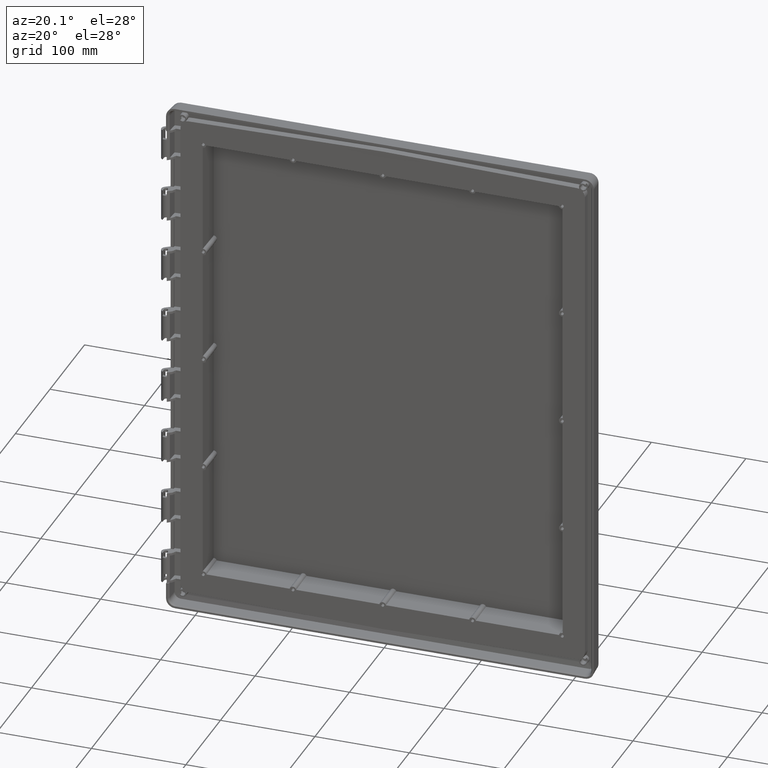
[diagram: clean part render]
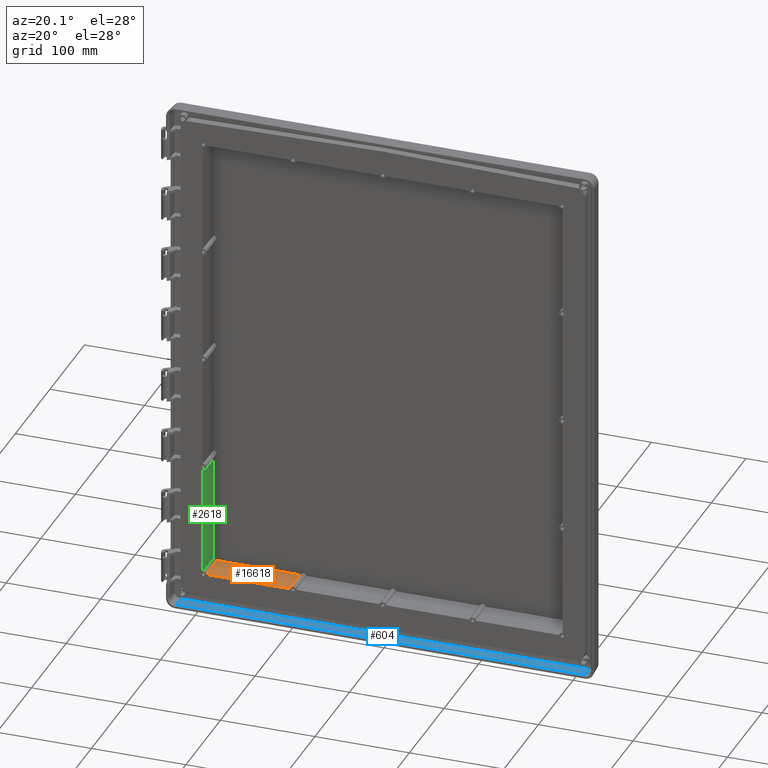
[diagram: same view with three faces highlighted in distinct colors, each labeled with its STEP entity id]
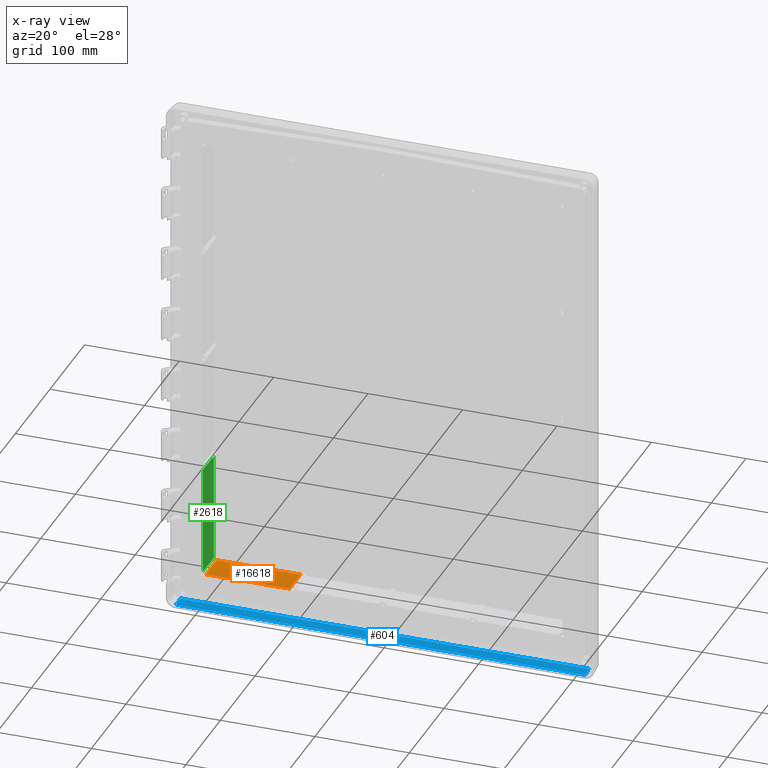
[diagram: x-ray of the same camera — body ghosted, the three highlighted faces saturated]
A machine part, auxiliary view with three faces highlighted in distinct colors.
The next image is the same camera in x-ray (body ghosted, the three faces saturated) — at least one of them is partly hidden behind the body in this view.
Their STEP definitions:

[orange] entity #16618 — the highlighted planar face has unit normal (0, 0.0175, -0.9998).
#167 = CARTESIAN_POINT ( 'NONE',  ( -186.5604405574138400, -4.000000000000000900, -241.3523651947923000 ) ) ;
#568 = AXIS2_PLACEMENT_3D ( 'NONE', #16840, #14601, #12399 ) ;
#590 = CARTESIAN_POINT ( 'NONE',  ( -186.7042932951999900, 26.39999999999999900, -240.8217312209999900 ) ) ;
#690 = VERTEX_POINT ( 'NONE', #14446 ) ;
#775 = VERTEX_POINT ( 'NONE', #13282 ) ;
#877 = FACE_OUTER_BOUND ( 'NONE', #5957, .T. ) ;
#953 = ORIENTED_EDGE ( 'NONE', *, *, #2044, .F. ) ;
#1050 = CARTESIAN_POINT ( 'NONE',  ( -98.35752898967244600, 16.49332835968637300, -240.9946528176711200 ) ) ;
#2044 = EDGE_CURVE ( 'NONE', #4637, #690, #20663, .T. ) ;
#2810 = LINE ( 'NONE', #590, #4162 ) ;
#3253 = CARTESIAN_POINT ( 'NONE',  ( -98.29570670485026100, 26.39999999999999900, -240.8217312209834800 ) ) ;
#4048 = EDGE_CURVE ( 'NONE', #4698, #4637, #2810, .T. ) ;
#4162 = VECTOR ( 'NONE', #19931, 1000.000000000000000 ) ;
#4637 = VERTEX_POINT ( 'NONE', #20037 ) ;
#4698 = VERTEX_POINT ( 'NONE', #19036 ) ;
#5944 = VECTOR ( 'NONE', #12469, 1000.000000000000000 ) ;
#5957 = EDGE_LOOP ( 'NONE', ( #13871, #953, #16563, #6416 ) ) ;
#6416 = ORIENTED_EDGE ( 'NONE', *, *, #11834, .F. ) ;
#8086 = EDGE_CURVE ( 'NONE', #690, #775, #16915, .T. ) ;
#11834 = EDGE_CURVE ( 'NONE', #775, #4698, #14543, .T. ) ;
#12399 = DIRECTION ( 'NONE',  ( 0.0000000000000000000, 0.9998476951563912700, 0.01745240643727984400 ) ) ;
#12469 = DIRECTION ( 'NONE',  ( -1.000000000000000000, 0.0000000000000000000, 0.0000000000000000000 ) ) ;
#13282 = CARTESIAN_POINT ( 'NONE',  ( -186.5604405574138400, -4.000000000000000900, -241.3523651947923000 ) ) ;
#13871 = ORIENTED_EDGE ( 'NONE', *, *, #8086, .F. ) ;
#14446 = CARTESIAN_POINT ( 'NONE',  ( -98.43955944258615900, -4.000000000000000900, -241.3523651947923000 ) ) ;
#14543 =( BOUNDED_CURVE ( )  B_SPLINE_CURVE ( 3, ( #167, #19533, #17395, #15179 ),
 .UNSPECIFIED., .F., .F. ) 
 B_SPLINE_CURVE_WITH_KNOTS ( ( 4, 4 ),
 ( 1.756907381563094200, 1.914151402555104500 ),
 .UNSPECIFIED. ) 
 CURVE ( )  GEOMETRIC_REPRESENTATION_ITEM ( )  RATIONAL_B_SPLINE_CURVE ( ( 1.000000000000000000, 0.9979405876576228400, 0.9979405876576228400, 1.000000000000000000 ) ) 
 REPRESENTATION_ITEM ( '' )  );
#14601 = DIRECTION ( 'NONE',  ( 0.0000000000000000000, 0.01745240643727984800, -0.9998476951563913800 ) ) ;
#14676 = CARTESIAN_POINT ( 'NONE',  ( -98.43955944258000600, -4.000000000000000000, -241.3523651948000000 ) ) ;
#15179 = CARTESIAN_POINT ( 'NONE',  ( -186.7042932951497700, 26.39999999999999900, -240.8217312209834800 ) ) ;
#16563 = ORIENTED_EDGE ( 'NONE', *, *, #4048, .F. ) ;
#16618 = ADVANCED_FACE ( 'NONE', ( #877 ), #18991, .F. ) ;
#16840 = CARTESIAN_POINT ( 'NONE',  ( 139.6100000000000100, -1.000000000000000000, -241.3000000000000100 ) ) ;
#16915 = LINE ( 'NONE', #14676, #5944 ) ;
#17395 = CARTESIAN_POINT ( 'NONE',  ( -186.6424710103275400, 16.49332835968637300, -240.9946528176711000 ) ) ;
#18215 = CARTESIAN_POINT ( 'NONE',  ( -98.43955944258615900, -4.000000000000000900, -241.3523651947923000 ) ) ;
#18991 = PLANE ( 'NONE',  #568 ) ;
#19036 = CARTESIAN_POINT ( 'NONE',  ( -186.7042932951497700, 26.39999999999999900, -240.8217312209834800 ) ) ;
#19533 = CARTESIAN_POINT ( 'NONE',  ( -186.5944211432583600, 6.339083248674579200, -241.1718958253808600 ) ) ;
#19931 = DIRECTION ( 'NONE',  ( 1.000000000000000000, 0.0000000000000000000, 0.0000000000000000000 ) ) ;
#20037 = CARTESIAN_POINT ( 'NONE',  ( -98.29570670485026100, 26.39999999999999900, -240.8217312209834800 ) ) ;
#20361 = CARTESIAN_POINT ( 'NONE',  ( -98.40557885674164100, 6.339083248674763900, -241.1718958253808600 ) ) ;
#20663 =( BOUNDED_CURVE ( )  B_SPLINE_CURVE ( 3, ( #3253, #1050, #20361, #18215 ),
 .UNSPECIFIED., .F., .F. ) 
 B_SPLINE_CURVE_WITH_KNOTS ( ( 4, 4 ),
 ( 4.369033904624482800, 4.526277925616490400 ),
 .UNSPECIFIED. ) 
 CURVE ( )  GEOMETRIC_REPRESENTATION_ITEM ( )  RATIONAL_B_SPLINE_CURVE ( ( 1.000000000000000000, 0.9979405876576229500, 0.9979405876576229500, 1.000000000000000000 ) ) 
 REPRESENTATION_ITEM ( '' )  );

[blue] entity #604 — the highlighted planar face has unit normal (0, 0.0523, -0.9986).
#604 = ADVANCED_FACE ( 'NONE', ( #12688 ), #15054, .F. ) ;
#1592 = EDGE_CURVE ( 'NONE', #8927, #10861, #12484, .T. ) ;
#1712 = CARTESIAN_POINT ( 'NONE',  ( -216.0764916483000200, 2.369068225099999900, -277.2175836242000200 ) ) ;
#1927 = AXIS2_PLACEMENT_3D ( 'NONE', #15035, #15016, #14995 ) ;
#3137 = B_SPLINE_CURVE_WITH_KNOTS ( 'NONE', 3,
 ( #1712, #20985, #18868, #16716 ),
 .UNSPECIFIED., .F., .F.,
 ( 4, 4 ),
 ( 0.0000000000000000000, 1.000000000000000000 ),
 .UNSPECIFIED. ) ;
#4420 = CARTESIAN_POINT ( 'NONE',  ( 216.7248707379000100, -10.00273544821000000, -277.8659725796999900 ) ) ;
#4527 = CARTESIAN_POINT ( 'NONE',  ( 216.7248707379000100, -10.00273544821000000, -277.8659725796999900 ) ) ;
#4549 = CARTESIAN_POINT ( 'NONE',  ( 216.5087443746982700, -5.878801245809267300, -277.6498361470189000 ) ) ;
#4554 = CARTESIAN_POINT ( 'NONE',  ( 216.2926180114991200, -1.754866510353794400, -277.4337098856254300 ) ) ;
#4593 = CARTESIAN_POINT ( 'NONE',  ( 216.0764916483000200, 2.369068225099999900, -277.2175836242000200 ) ) ;
#4732 = CARTESIAN_POINT ( 'NONE',  ( 216.0764916483000200, 2.369068225099999900, -277.2175836242000200 ) ) ;
#5303 = EDGE_CURVE ( 'NONE', #8578, #10922, #3137, .T. ) ;
#6617 = CARTESIAN_POINT ( 'NONE',  ( 72.24162357929999700, -10.00273598126295100, -277.8659624084437500 ) ) ;
#8492 = ORIENTED_EDGE ( 'NONE', *, *, #5303, .T. ) ;
#8578 = VERTEX_POINT ( 'NONE', #10770 ) ;
#8863 = CARTESIAN_POINT ( 'NONE',  ( -72.24162357929999700, -10.00273598126295100, -277.8659624084437500 ) ) ;
#8927 = VERTEX_POINT ( 'NONE', #4732 ) ;
#9146 = DIRECTION ( 'NONE',  ( -1.000000000000000000, 0.0000000000000000000, 0.0000000000000000000 ) ) ;
#10453 = VECTOR ( 'NONE', #9146, 1000.000000000000000 ) ;
#10770 = CARTESIAN_POINT ( 'NONE',  ( -216.0764916483000200, 2.369068225099999900, -277.2175836242000200 ) ) ;
#10861 = VERTEX_POINT ( 'NONE', #13374 ) ;
#10922 = VERTEX_POINT ( 'NONE', #20545 ) ;
#11070 = CARTESIAN_POINT ( 'NONE',  ( -216.7248707379000100, -10.00273544821000000, -277.8659725796999900 ) ) ;
#11331 = CARTESIAN_POINT ( 'NONE',  ( 216.0764916483000200, 2.369068225099999900, -277.2175836242000200 ) ) ;
#11444 = ORIENTED_EDGE ( 'NONE', *, *, #17694, .T. ) ;
#12484 = B_SPLINE_CURVE_WITH_KNOTS ( 'NONE', 3,
 ( #4593, #4554, #4549, #4527 ),
 .UNSPECIFIED., .F., .F.,
 ( 4, 4 ),
 ( 0.0000000000000000000, 1.000000000000000000 ),
 .UNSPECIFIED. ) ;
#12688 = FACE_OUTER_BOUND ( 'NONE', #17492, .T. ) ;
#13374 = CARTESIAN_POINT ( 'NONE',  ( 216.7248707379000100, -10.00273544821000000, -277.8659725796999900 ) ) ;
#14995 = DIRECTION ( 'NONE',  ( 0.0000000000000000000, -0.9986295347545742800, -0.05233595624293865100 ) ) ;
#15016 = DIRECTION ( 'NONE',  ( 0.0000000000000000000, 0.05233595624293865100, -0.9986295347545742800 ) ) ;
#15035 = CARTESIAN_POINT ( 'NONE',  ( 221.9000000000000100, -3.947664043756999900, -277.5486295348000600 ) ) ;
#15054 = PLANE ( 'NONE',  #1927 ) ;
#15678 = B_SPLINE_CURVE_WITH_KNOTS ( 'NONE', 3,
 ( #11070, #8863, #6617, #4420 ),
 .UNSPECIFIED., .F., .F.,
 ( 4, 4 ),
 ( 0.0000000000000000000, 1.000000000000000000 ),
 .UNSPECIFIED. ) ;
#16716 = CARTESIAN_POINT ( 'NONE',  ( -216.7248707379000100, -10.00273544821000000, -277.8659725796999900 ) ) ;
#17492 = EDGE_LOOP ( 'NONE', ( #18106, #20329, #8492, #11444 ) ) ;
#17694 = EDGE_CURVE ( 'NONE', #10922, #10861, #15678, .T. ) ;
#18106 = ORIENTED_EDGE ( 'NONE', *, *, #1592, .F. ) ;
#18868 = CARTESIAN_POINT ( 'NONE',  ( -216.5087443746986700, -5.878801245807599300, -277.6498361470503400 ) ) ;
#20094 = LINE ( 'NONE', #11331, #10453 ) ;
#20329 = ORIENTED_EDGE ( 'NONE', *, *, #20364, .T. ) ;
#20364 = EDGE_CURVE ( 'NONE', #8927, #8578, #20094, .T. ) ;
#20545 = CARTESIAN_POINT ( 'NONE',  ( -216.7248707379000100, -10.00273544821000000, -277.8659725796999900 ) ) ;
#20985 = CARTESIAN_POINT ( 'NONE',  ( -216.2926180114993100, -1.754866510352132800, -277.4337098856569800 ) ) ;

[green] entity #2618 — the highlighted planar face has unit normal (-0.9998, 0.0175, 0).
#270 = EDGE_LOOP ( 'NONE', ( #11533, #21271, #5586, #18507 ) ) ;
#779 = VERTEX_POINT ( 'NONE', #13259 ) ;
#1250 = CARTESIAN_POINT ( 'NONE',  ( -190.4623651947923100, -4.000000000000000000, -124.4693253561239600 ) ) ;
#1332 = EDGE_CURVE ( 'NONE', #5592, #14996, #8986, .T. ) ;
#1377 = EDGE_CURVE ( 'NONE', #5592, #779, #3717, .T. ) ;
#1411 = EDGE_CURVE ( 'NONE', #779, #15278, #8009, .T. ) ;
#2618 = ADVANCED_FACE ( 'NONE', ( #11152 ), #15755, .F. ) ;
#3246 = CARTESIAN_POINT ( 'NONE',  ( -189.9317312209834700, 26.39999999999999900, -238.5006658670810400 ) ) ;
#3465 = CARTESIAN_POINT ( 'NONE',  ( -190.2864186665204900, 6.079969853318908200, -124.4927741660409900 ) ) ;
#3717 =( BOUNDED_CURVE ( )  B_SPLINE_CURVE ( 3, ( #8335, #8328, #8311, #8288 ),
 .UNSPECIFIED., .F., .T. ) 
 B_SPLINE_CURVE_WITH_KNOTS ( ( 4, 4 ),
 ( 4.692882377901987000, 4.844880608710943700 ),
 .UNSPECIFIED. ) 
 CURVE ( )  GEOMETRIC_REPRESENTATION_ITEM ( )  RATIONAL_B_SPLINE_CURVE ( ( 1.000000000000000000, 0.9980756379914828000, 0.9980756379914828000, 1.000000000000000000 ) ) 
 REPRESENTATION_ITEM ( '' )  );
#5586 = ORIENTED_EDGE ( 'NONE', *, *, #1332, .T. ) ;
#5592 = VERTEX_POINT ( 'NONE', #3246 ) ;
#5684 = CARTESIAN_POINT ( 'NONE',  ( -190.1091996416893200, 16.23284098614000100, -124.5027963780028300 ) ) ;
#7400 = CARTESIAN_POINT ( 'NONE',  ( -189.9317312209834900, 26.39999999999999900, -124.4993341329189500 ) ) ;
#7905 = DIRECTION ( 'NONE',  ( 0.0000000000000000000, 0.0000000000000000000, 1.000000000000000000 ) ) ;
#7906 = CARTESIAN_POINT ( 'NONE',  ( -189.9317312209834900, 26.39999999999999900, -124.4993341329189500 ) ) ;
#7924 = CARTESIAN_POINT ( 'NONE',  ( -190.4623651947999900, -4.000000000000000000, -238.5306746439000300 ) ) ;
#8009 = LINE ( 'NONE', #7924, #18576 ) ;
#8288 = CARTESIAN_POINT ( 'NONE',  ( -190.4623651947923100, -4.000000000000000000, -238.5306746438760400 ) ) ;
#8311 = CARTESIAN_POINT ( 'NONE',  ( -190.2864186665204900, 6.079969853318908200, -238.5072258339590100 ) ) ;
#8328 = CARTESIAN_POINT ( 'NONE',  ( -190.1091996416893200, 16.23284098614000100, -238.4972036219971900 ) ) ;
#8335 = CARTESIAN_POINT ( 'NONE',  ( -189.9317312209834700, 26.39999999999999900, -238.5006658670810400 ) ) ;
#8944 = DIRECTION ( 'NONE',  ( 0.0000000000000000000, 0.0000000000000000000, 1.000000000000000000 ) ) ;
#8964 = CARTESIAN_POINT ( 'NONE',  ( -189.9317312210000100, 26.39999999999999900, -238.5006658671000000 ) ) ;
#8986 = LINE ( 'NONE', #8964, #20238 ) ;
#9140 = DIRECTION ( 'NONE',  ( -0.01745240643727984400, -0.9998476951563912700, 0.0000000000000000000 ) ) ;
#10115 = EDGE_CURVE ( 'NONE', #14996, #15278, #21027, .T. ) ;
#11152 = FACE_OUTER_BOUND ( 'NONE', #270, .T. ) ;
#11322 = DIRECTION ( 'NONE',  ( -0.9998476951563913800, 0.01745240643727984800, 0.0000000000000000000 ) ) ;
#11446 = AXIS2_PLACEMENT_3D ( 'NONE', #13541, #11322, #9140 ) ;
#11533 = ORIENTED_EDGE ( 'NONE', *, *, #1411, .F. ) ;
#13259 = CARTESIAN_POINT ( 'NONE',  ( -190.4623651947923100, -4.000000000000000000, -238.5306746438760400 ) ) ;
#13541 = CARTESIAN_POINT ( 'NONE',  ( -190.4100000000000000, -1.000000000000000000, 241.3000000000000100 ) ) ;
#14996 = VERTEX_POINT ( 'NONE', #7400 ) ;
#15278 = VERTEX_POINT ( 'NONE', #18791 ) ;
#15755 = PLANE ( 'NONE',  #11446 ) ;
#18507 = ORIENTED_EDGE ( 'NONE', *, *, #10115, .T. ) ;
#18576 = VECTOR ( 'NONE', #7905, 1000.000000000000000 ) ;
#18791 = CARTESIAN_POINT ( 'NONE',  ( -190.4623651947923100, -4.000000000000000000, -124.4693253561239600 ) ) ;
#20238 = VECTOR ( 'NONE', #8944, 1000.000000000000000 ) ;
#21027 =( BOUNDED_CURVE ( )  B_SPLINE_CURVE ( 3, ( #7906, #5684, #3465, #1250 ),
 .UNSPECIFIED., .F., .T. ) 
 B_SPLINE_CURVE_WITH_KNOTS ( ( 4, 4 ),
 ( 4.692882377901987000, 4.844880608710943700 ),
 .UNSPECIFIED. ) 
 CURVE ( )  GEOMETRIC_REPRESENTATION_ITEM ( )  RATIONAL_B_SPLINE_CURVE ( ( 1.000000000000000000, 0.9980756379914828000, 0.9980756379914828000, 1.000000000000000000 ) ) 
 REPRESENTATION_ITEM ( '' )  );
#21271 = ORIENTED_EDGE ( 'NONE', *, *, #1377, .F. ) ;